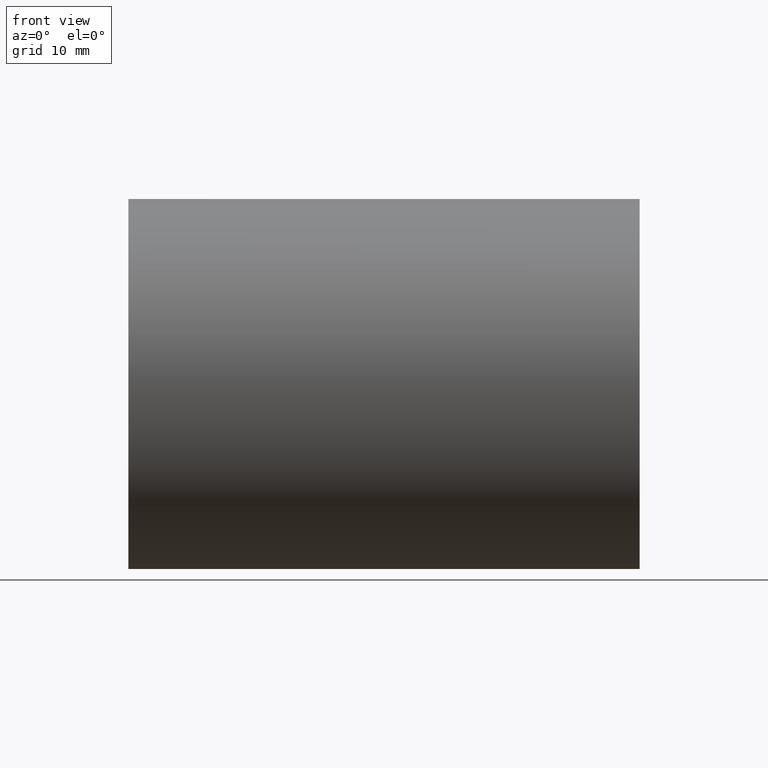
[diagram: clean part render]
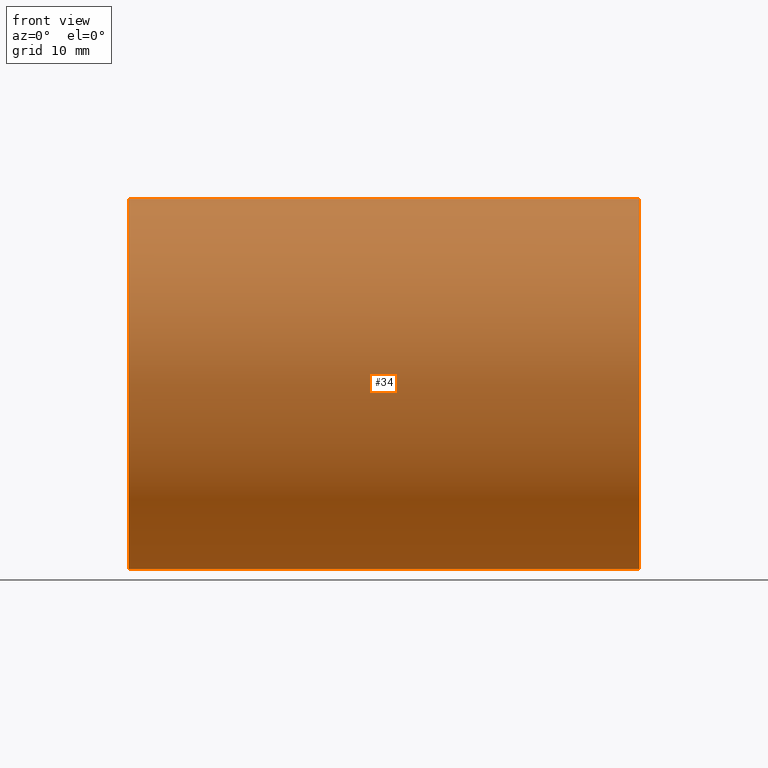
[diagram: same view with one face highlighted and labeled with its STEP entity id]
A machine part, front view. The second image highlights one B-rep face of the part: STEP entity #34.
In plain terms, the highlighted cylindrical surface (partial cylindrical patch) has radius 24.6062 mm, axis along (-1, -0, -0).
Its self-contained STEP definition (entity closure, byte-faithful):
#8 = VECTOR ( 'NONE', #357, 39.37007874015748100 ) ;
#34 = ADVANCED_FACE ( 'NONE', ( #338 ), #306, .T. ) ;
#35 = ORIENTED_EDGE ( 'NONE', *, *, #550, .T. ) ;
#87 = CARTESIAN_POINT ( 'NONE',  ( 0.0000000000000000000, 0.0000000000000000000, 0.0000000000000000000 ) ) ;
#89 = AXIS2_PLACEMENT_3D ( 'NONE', #434, #108, #496 ) ;
#107 = CARTESIAN_POINT ( 'NONE',  ( -1.338500000000000000, 0.0000000000000000000, 0.9687499999999995600 ) ) ;
#108 = DIRECTION ( 'NONE',  ( -1.000000000000000000, -0.0000000000000000000, -0.0000000000000000000 ) ) ;
#165 = LINE ( 'NONE', #651, #8 ) ;
#178 = CARTESIAN_POINT ( 'NONE',  ( -1.338500000000000000, 1.186376586673998000E-016, -0.9687499999999995600 ) ) ;
#221 = ORIENTED_EDGE ( 'NONE', *, *, #439, .F. ) ;
#232 = VERTEX_POINT ( 'NONE', #107 ) ;
#238 = DIRECTION ( 'NONE',  ( -1.000000000000000000, -0.0000000000000000000, -0.0000000000000000000 ) ) ;
#245 = CARTESIAN_POINT ( 'NONE',  ( -1.338500000000000000, 0.0000000000000000000, 0.0000000000000000000 ) ) ;
#281 = VERTEX_POINT ( 'NONE', #178 ) ;
#288 = ORIENTED_EDGE ( 'NONE', *, *, #391, .F. ) ;
#305 = DIRECTION ( 'NONE',  ( 0.0000000000000000000, 0.0000000000000000000, 1.000000000000000000 ) ) ;
#306 = CYLINDRICAL_SURFACE ( 'NONE', #629, 0.9687499999999995600 ) ;
#319 = VERTEX_POINT ( 'NONE', #507 ) ;
#338 = FACE_OUTER_BOUND ( 'NONE', #564, .T. ) ;
#357 = DIRECTION ( 'NONE',  ( -1.000000000000000000, -0.0000000000000000000, -0.0000000000000000000 ) ) ;
#363 = EDGE_CURVE ( 'NONE', #455, #319, #554, .T. ) ;
#374 = CARTESIAN_POINT ( 'NONE',  ( 0.0000000000000000000, 1.186376586673998000E-016, -0.9687499999999995600 ) ) ;
#391 = EDGE_CURVE ( 'NONE', #455, #281, #571, .T. ) ;
#410 = CARTESIAN_POINT ( 'NONE',  ( 1.338500000000000000, 1.186376586673998000E-016, -0.9687499999999995600 ) ) ;
#434 = CARTESIAN_POINT ( 'NONE',  ( 1.338500000000000000, 0.0000000000000000000, 0.0000000000000000000 ) ) ;
#436 = DIRECTION ( 'NONE',  ( -1.000000000000000000, -0.0000000000000000000, -0.0000000000000000000 ) ) ;
#439 = EDGE_CURVE ( 'NONE', #281, #232, #650, .T. ) ;
#455 = VERTEX_POINT ( 'NONE', #410 ) ;
#496 = DIRECTION ( 'NONE',  ( 0.0000000000000000000, 0.0000000000000000000, 1.000000000000000000 ) ) ;
#507 = CARTESIAN_POINT ( 'NONE',  ( 1.338500000000000000, 0.0000000000000000000, 0.9687499999999995600 ) ) ;
#533 = AXIS2_PLACEMENT_3D ( 'NONE', #245, #641, #305 ) ;
#550 = EDGE_CURVE ( 'NONE', #319, #232, #165, .T. ) ;
#554 = CIRCLE ( 'NONE', #89, 0.9687499999999995600 ) ;
#564 = EDGE_LOOP ( 'NONE', ( #288, #612, #35, #221 ) ) ;
#571 = LINE ( 'NONE', #374, #633 ) ;
#612 = ORIENTED_EDGE ( 'NONE', *, *, #363, .T. ) ;
#629 = AXIS2_PLACEMENT_3D ( 'NONE', #87, #238, #675 ) ;
#633 = VECTOR ( 'NONE', #436, 39.37007874015748100 ) ;
#641 = DIRECTION ( 'NONE',  ( -1.000000000000000000, -0.0000000000000000000, -0.0000000000000000000 ) ) ;
#650 = CIRCLE ( 'NONE', #533, 0.9687499999999995600 ) ;
#651 = CARTESIAN_POINT ( 'NONE',  ( 0.0000000000000000000, 0.0000000000000000000, 0.9687499999999995600 ) ) ;
#675 = DIRECTION ( 'NONE',  ( 0.0000000000000000000, 0.0000000000000000000, 1.000000000000000000 ) ) ;